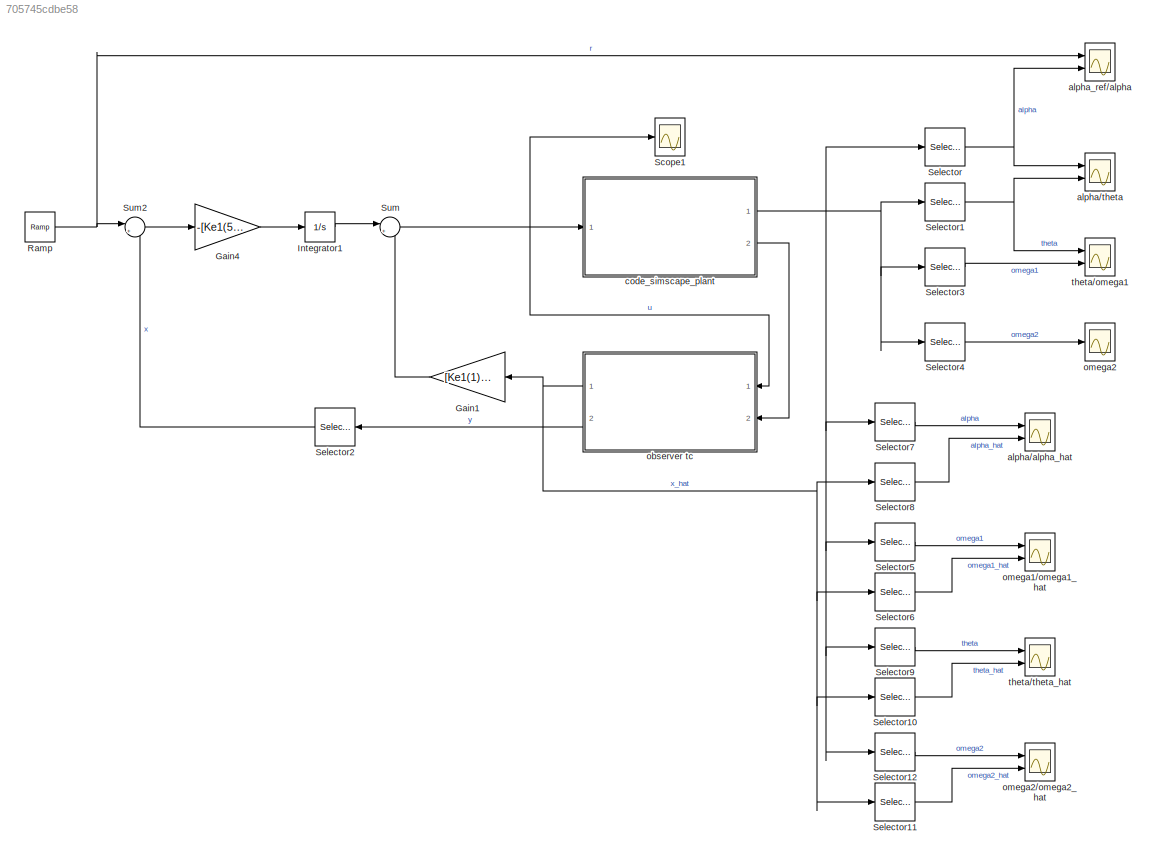
MODEL slx_705745cdbe58
KIND model
CONFIG AbsTol = auto
CONFIG EnableMultiTasking = off
CONFIG FixedStep = auto
CONFIG MaxStep = ts
CONFIG MinStep = auto
CONFIG RelTol = 1e-3
CONFIG SampleTimeConstraint = Unconstrained
CONFIG Solver = daessc
CONFIG SolverName = daessc
CONFIG StartTime = 0.0
CONFIG StopTime = simlength
BLOCK [Gain] Gain1
  Gain = [Ke1(1) Ke1(2) Ke1(3) Ke1(4)]
  Multiplication = Matrix(K*u)
  NameLocation = top
BLOCK [Gain] Gain4
  Gain = -[Ke1(5)]
  NameLocation = top
BLOCK [Integrator] Integrator1
  Ports = [1, 1]
BLOCK [Reference] Ramp  REF=simulink/Sources/Ramp
  Ports = [0, 1]
  SourceBlock = simulink/Sources/Ramp
  SourceProductBaseCode = SL
  SourceType = Ramp
BLOCK [Scope] Scope1
  Floating = off
  NumInputPorts = 1
  Ports = [1]
  ScopeSpecificationString = Simulink.scopes.TimeScopeBlockCfg('CurrentConfiguration', extmgr.ConfigurationSet(extmgr.Configuration('Core','General UI',true),extmgr.Configuration('Core','Source UI',true),extmgr.Configuration('Sources','WiredSimulink',true,'DataLoggingVariableName','ScopeData1'),extmgr.Configuration('Visuals','Time Domain',true,'SerializedDisplays',{struct('MinYLimReal','-742.20973','MaxYLimReal','910.39964','...<+1583ch>
BLOCK [Selector] Selector
  IndexOptions = Index vector (dialog)
  Indices = 1
  InputPortWidth = 4
  OutputSizes = 1
  Ports = [1, 1]
BLOCK [Selector] Selector1
  IndexOptions = Index vector (dialog)
  Indices = 3
  InputPortWidth = 4
  OutputSizes = 1
  Ports = [1, 1]
BLOCK [Selector] Selector10
  IndexOptions = Index vector (dialog)
  Indices = 3
  InputPortWidth = 4
  OutputSizes = 1
  Ports = [1, 1]
BLOCK [Selector] Selector11
  IndexOptions = Index vector (dialog)
  Indices = 4
  InputPortWidth = 4
  OutputSizes = 1
  Ports = [1, 1]
BLOCK [Selector] Selector12
  IndexOptions = Index vector (dialog)
  Indices = 4
  InputPortWidth = 4
  OutputSizes = 1
  Ports = [1, 1]
BLOCK [Selector] Selector2
  IndexOptions = Index vector (dialog)
  Indices = 1
  InputPortWidth = 2
  NameLocation = top
  OutputSizes = 1
  Ports = [1, 1]
BLOCK [Selector] Selector3
  IndexOptions = Index vector (dialog)
  Indices = 2
  InputPortWidth = 4
  OutputSizes = 1
  Ports = [1, 1]
BLOCK [Selector] Selector4
  IndexOptions = Index vector (dialog)
  Indices = 4
  InputPortWidth = 4
  OutputSizes = 1
  Ports = [1, 1]
BLOCK [Selector] Selector5
  IndexOptions = Index vector (dialog)
  Indices = 2
  InputPortWidth = 4
  OutputSizes = 1
  Ports = [1, 1]
BLOCK [Selector] Selector6
  IndexOptions = Index vector (dialog)
  Indices = 2
  InputPortWidth = 4
  OutputSizes = 1
  Ports = [1, 1]
BLOCK [Selector] Selector7
  IndexOptions = Index vector (dialog)
  Indices = 1
  InputPortWidth = 4
  OutputSizes = 1
  Ports = [1, 1]
BLOCK [Selector] Selector8
  IndexOptions = Index vector (dialog)
  Indices = 1
  InputPortWidth = 4
  OutputSizes = 1
  Ports = [1, 1]
BLOCK [Selector] Selector9
  IndexOptions = Index vector (dialog)
  Indices = 3
  InputPortWidth = 4
  OutputSizes = 1
  Ports = [1, 1]
BLOCK [Sum] Sum
  Inputs = |+-
  Ports = [2, 1]
BLOCK [Sum] Sum2
  Inputs = |+-
  Ports = [2, 1]
BLOCK [Scope] alpha//alpha_hat
  Floating = off
  NumInputPorts = 2
  Ports = [2]
  ScopeSpecificationString = Simulink.scopes.TimeScopeBlockCfg('CurrentConfiguration', extmgr.ConfigurationSet(extmgr.Configuration('Core','General UI',true),extmgr.Configuration('Core','Source UI',true),extmgr.Configuration('Sources','WiredSimulink',true,'DataLoggingVariableName','ScopeData1'),extmgr.Configuration('Visuals','Time Domain',true,'SerializedDisplays',{struct('MinYLimReal','-49.71948','MaxYLimReal','446.41346','Y...<+1912ch>
BLOCK [Scope] alpha//theta
  Floating = off
  NumInputPorts = 2
  Ports = [2]
  ScopeSpecificationString = Simulink.scopes.TimeScopeBlockCfg('CurrentConfiguration', extmgr.ConfigurationSet(extmgr.Configuration('Core','General UI',true),extmgr.Configuration('Core','Source UI',true),extmgr.Configuration('Sources','WiredSimulink',true,'DataLoggingVariableName','ScopeData1'),extmgr.Configuration('Visuals','Time Domain',true,'SerializedDisplays',{struct('MinYLimReal','-8.3731','MaxYLimReal','75.35793','YLab...<+2166ch>
BLOCK [Scope] alpha_ref//alpha
  Floating = off
  NumInputPorts = 2
  Ports = [2]
  ScopeSpecificationString = Simulink.scopes.TimeScopeBlockCfg('CurrentConfiguration', extmgr.ConfigurationSet(extmgr.Configuration('Core','General UI',true),extmgr.Configuration('Core','Source UI',true),extmgr.Configuration('Sources','WiredSimulink',true,'DataLoggingVariableName','ScopeData1'),extmgr.Configuration('Visuals','Time Domain',true,'SerializedDisplays',{struct('MinYLimReal','-62.566','MaxYLimReal','563.094','YLabe...<+2166ch>
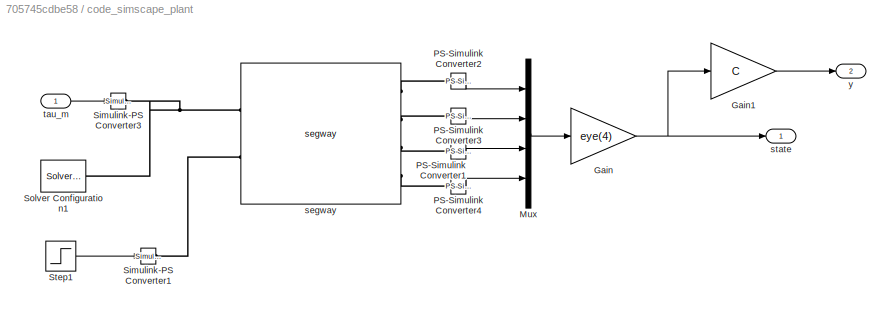
BLOCK [SubSystem] code_simscape_plant 
  Ports = [1, 2]
  RequestExecContextInheritance = off
BLOCK [Gain] code_simscape_plant /Gain
  Gain = eye(4)
  Multiplication = Matrix(K*u)
BLOCK [Gain] code_simscape_plant /Gain1
  Gain = C
  Multiplication = Matrix(K*u)
BLOCK [Mux] code_simscape_plant /Mux
  DisplayOption = bar
  Ports = [4, 1]
BLOCK [Reference] code_simscape_plant /PS-Simulink Converter1  REF=nesl_utility/PS-Simulink
Converter
  NameLocation = top
  Ports = [0, 1, 0, 0, 0, 1]
  SourceBlock = nesl_utility/PS-Simulink\nConverter
  SourceProductBaseCode = SS
  SourceType = PS-Simulink\nConverter
BLOCK [Reference] code_simscape_plant /PS-Simulink Converter2  REF=nesl_utility/PS-Simulink
Converter
  Ports = [0, 1, 0, 0, 0, 1]
  SourceBlock = nesl_utility/PS-Simulink\nConverter
  SourceProductBaseCode = SS
  SourceType = PS-Simulink\nConverter
BLOCK [Reference] code_simscape_plant /PS-Simulink Converter3  REF=nesl_utility/PS-Simulink
Converter
  NameLocation = top
  Ports = [0, 1, 0, 0, 0, 1]
  SourceBlock = nesl_utility/PS-Simulink\nConverter
  SourceProductBaseCode = SS
  SourceType = PS-Simulink\nConverter
BLOCK [Reference] code_simscape_plant /PS-Simulink Converter4  REF=nesl_utility/PS-Simulink
Converter
  NameLocation = top
  Ports = [0, 1, 0, 0, 0, 1]
  SourceBlock = nesl_utility/PS-Simulink\nConverter
  SourceProductBaseCode = SS
  SourceType = PS-Simulink\nConverter
BLOCK [Reference] code_simscape_plant /Simulink-PS Converter1  REF=nesl_utility/Simulink-PS
Converter
  Ports = [1, 0, 0, 0, 0, 0, 1]
  SourceBlock = nesl_utility/Simulink-PS\nConverter
  SourceProductBaseCode = SS
  SourceType = Simulink-PS\nConverter
BLOCK [Reference] code_simscape_plant /Simulink-PS Converter3  REF=nesl_utility/Simulink-PS
Converter
  Ports = [1, 0, 0, 0, 0, 0, 1]
  SourceBlock = nesl_utility/Simulink-PS\nConverter
  SourceProductBaseCode = SS
  SourceType = Simulink-PS\nConverter
BLOCK [Reference] code_simscape_plant /Solver Configuration1  REF=nesl_utility/Solver
Configuration
  Ports = [0, 0, 0, 0, 0, 0, 1]
  SourceBlock = nesl_utility/Solver\nConfiguration
  SourceProductBaseCode = SS
  SourceType = Solver\nConfiguration
BLOCK [Step] code_simscape_plant /Step1
  After = 250
  SampleTime = 0
  Time = simlength/2
BLOCK [Reference] code_simscape_plant /segway  REF=segway_lib/segway
  Ports = [0, 0, 0, 0, 0, 2, 4]
  SourceBlock = segway_lib/segway
  SourceType = segway
BLOCK [Outport] code_simscape_plant /state
BLOCK [Inport] code_simscape_plant /tau_m
BLOCK [Outport] code_simscape_plant /y
  Port = 2
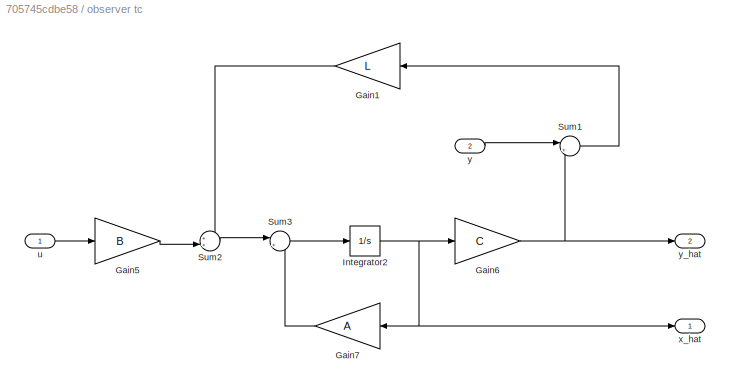
BLOCK [SubSystem] observer tc
  NameLocation = top
  Ports = [2, 2]
  RequestExecContextInheritance = off
BLOCK [Gain] observer tc/Gain1
  Gain = L
  Multiplication = Matrix(K*u)
  NameLocation = top
BLOCK [Gain] observer tc/Gain5
  Gain = B
  Multiplication = Matrix(K*u)
BLOCK [Gain] observer tc/Gain6
  Gain = C
  Multiplication = Matrix(K*u)
BLOCK [Gain] observer tc/Gain7
  Gain = A
  Multiplication = Matrix(K*u)
BLOCK [Integrator] observer tc/Integrator2
  InitialCondition = [0 0 0 0]
  Ports = [1, 1]
BLOCK [Sum] observer tc/Sum1
  Inputs = |+-
  Ports = [2, 1]
BLOCK [Sum] observer tc/Sum2
  Inputs = ++|
  Ports = [2, 1]
BLOCK [Sum] observer tc/Sum3
  Inputs = |++
  Ports = [2, 1]
BLOCK [Inport] observer tc/u
BLOCK [Outport] observer tc/x_hat
BLOCK [Inport] observer tc/y
  Port = 2
BLOCK [Outport] observer tc/y_hat
  Port = 2
BLOCK [Scope] omega1//omega1_hat
  Floating = off
  NumInputPorts = 2
  Ports = [2]
  ScopeSpecificationString = Simulink.scopes.TimeScopeBlockCfg('CurrentConfiguration', extmgr.ConfigurationSet(extmgr.Configuration('Core','General UI',true),extmgr.Configuration('Core','Source UI',true),extmgr.Configuration('Sources','WiredSimulink',true,'DataLoggingVariableName','ScopeData2'),extmgr.Configuration('Visuals','Time Domain',true,'SerializedDisplays',{struct('MinYLimReal','-8.78624','MaxYLimReal','38.85623','YLa...<+1915ch>
BLOCK [Scope] omega2
  Floating = off
  NumInputPorts = 1
  Ports = [1]
  ScopeSpecificationString = Simulink.scopes.TimeScopeBlockCfg('CurrentConfiguration', extmgr.ConfigurationSet(extmgr.Configuration('Core','General UI',true),extmgr.Configuration('Core','Source UI',true),extmgr.Configuration('Sources','WiredSimulink',true,'DataLoggingVariableName','ScopeData3'),extmgr.Configuration('Visuals','Time Domain',true,'SerializedDisplays',{struct('MinYLimReal','-5.16554','MaxYLimReal','4.77789','YLab...<+1572ch>
BLOCK [Scope] omega2//omega2_hat
  Floating = off
  NumInputPorts = 2
  Ports = [2]
  ScopeSpecificationString = Simulink.scopes.TimeScopeBlockCfg('CurrentConfiguration', extmgr.ConfigurationSet(extmgr.Configuration('Core','General UI',true),extmgr.Configuration('Core','Source UI',true),extmgr.Configuration('Sources','WiredSimulink',true,'DataLoggingVariableName','ScopeData3'),extmgr.Configuration('Visuals','Time Domain',true,'SerializedDisplays',{struct('MinYLimReal','-8.78624','MaxYLimReal','38.85623','YLa...<+1908ch>
BLOCK [Scope] theta//omega1
  Floating = off
  NumInputPorts = 2
  Ports = [2]
  ScopeSpecificationString = Simulink.scopes.TimeScopeBlockCfg('CurrentConfiguration', extmgr.ConfigurationSet(extmgr.Configuration('Core','General UI',true),extmgr.Configuration('Core','Source UI',true),extmgr.Configuration('Sources','WiredSimulink',true,'DataLoggingVariableName','ScopeData2'),extmgr.Configuration('Visuals','Time Domain',true,'SerializedDisplays',{struct('MinYLimReal','-0.76224','MaxYLimReal','0.16159','YLab...<+2154ch>
BLOCK [Scope] theta//theta_hat
  Floating = off
  NumInputPorts = 2
  Ports = [2]
  ScopeSpecificationString = Simulink.scopes.TimeScopeBlockCfg('CurrentConfiguration', extmgr.ConfigurationSet(extmgr.Configuration('Core','General UI',true),extmgr.Configuration('Core','Source UI',true),extmgr.Configuration('Sources','WiredSimulink',true,'DataLoggingVariableName','ScopeData2'),extmgr.Configuration('Visuals','Time Domain',true,'SerializedDisplays',{struct('MinYLimReal','-0.7598','MaxYLimReal','0.13968','YLabe...<+1898ch>
LINE Gain1:1 -> Sum:2
LINE Gain4:1 -> Integrator1:1
LINE Integrator1:1 -> Sum:1
NET Ramp:1 -> Sum2:1, alpha_ref//alpha:1
LINE Selector10:1 -> theta//theta_hat:2
LINE Selector11:1 -> omega2//omega2_hat:2
LINE Selector12:1 -> omega2//omega2_hat:1
NET Selector1:1 -> alpha//theta:2, theta//omega1:1
LINE Selector2:1 -> Sum2:2
LINE Selector3:1 -> theta//omega1:2
LINE Selector4:1 -> omega2:1
LINE Selector5:1 -> omega1//omega1_hat:1
LINE Selector6:1 -> omega1//omega1_hat:2
LINE Selector7:1 -> alpha//alpha_hat:1
LINE Selector8:1 -> alpha//alpha_hat:2
LINE Selector9:1 -> theta//theta_hat:1
NET Selector:1 -> alpha//theta:1, alpha_ref//alpha:2
LINE Sum2:1 -> Gain4:1
NET Sum:1 -> Scope1:1, code_simscape_plant :1, observer tc:1
LINE code_simscape_plant /Gain1:1 -> code_simscape_plant /y:1
NET code_simscape_plant /Gain:1 -> code_simscape_plant /Gain1:1, code_simscape_plant /state:1
LINE code_simscape_plant /Mux:1 -> code_simscape_plant /Gain:1
LINE code_simscape_plant /PS-Simulink Converter1:1 -> code_simscape_plant /Mux:3
LINE code_simscape_plant /PS-Simulink Converter2:1 -> code_simscape_plant /Mux:1
LINE code_simscape_plant /PS-Simulink Converter3:1 -> code_simscape_plant /Mux:2
LINE code_simscape_plant /PS-Simulink Converter4:1 -> code_simscape_plant /Mux:4
LINE code_simscape_plant /Step1:1 -> code_simscape_plant /Simulink-PS Converter1:1
LINE code_simscape_plant /tau_m:1 -> code_simscape_plant /Simulink-PS Converter3:1
NET code_simscape_plant :1 -> Selector12:1, Selector1:1, Selector3:1, Selector4:1, Selector5:1, Selector7:1, Selector9:1, Selector:1
LINE code_simscape_plant :2 -> observer tc:2
LINE observer tc/Gain1:1 -> observer tc/Sum2:1
LINE observer tc/Gain5:1 -> observer tc/Sum2:2
NET observer tc/Gain6:1 -> observer tc/Sum1:2, observer tc/y_hat:1
LINE observer tc/Gain7:1 -> observer tc/Sum3:2
NET observer tc/Integrator2:1 -> observer tc/Gain6:1, observer tc/Gain7:1, observer tc/x_hat:1
LINE observer tc/Sum1:1 -> observer tc/Gain1:1
LINE observer tc/Sum2:1 -> observer tc/Sum3:1
LINE observer tc/Sum3:1 -> observer tc/Integrator2:1
LINE observer tc/u:1 -> observer tc/Gain5:1
LINE observer tc/y:1 -> observer tc/Sum1:1
NET observer tc:1 -> Gain1:1, Selector10:1, Selector11:1, Selector6:1, Selector8:1
LINE observer tc:2 -> Selector2:1
PLINE code_simscape_plant /PS-Simulink Converter1:LConn1 -- code_simscape_plant /segway:RConn3
PLINE code_simscape_plant /PS-Simulink Converter2:LConn1 -- code_simscape_plant /segway:RConn1
PLINE code_simscape_plant /PS-Simulink Converter3:LConn1 -- code_simscape_plant /segway:RConn2
PLINE code_simscape_plant /PS-Simulink Converter4:LConn1 -- code_simscape_plant /segway:RConn4
PLINE code_simscape_plant /Simulink-PS Converter1:RConn1 -- code_simscape_plant /segway:LConn2
PNET net1: code_simscape_plant /Simulink-PS Converter3:RConn1 -- code_simscape_plant /Solver Configuration1:RConn1 -- code_simscape_plant /segway:LConn1
note: NET lines group one-source signal fan-out (src -> all destinations, sorted); 1:1 wires keep LINE; PNET lines group multi-terminal physical nets as a canonical sorted terminal list (undirected conserving connections); 2-terminal nets keep the pairwise PLINE form
